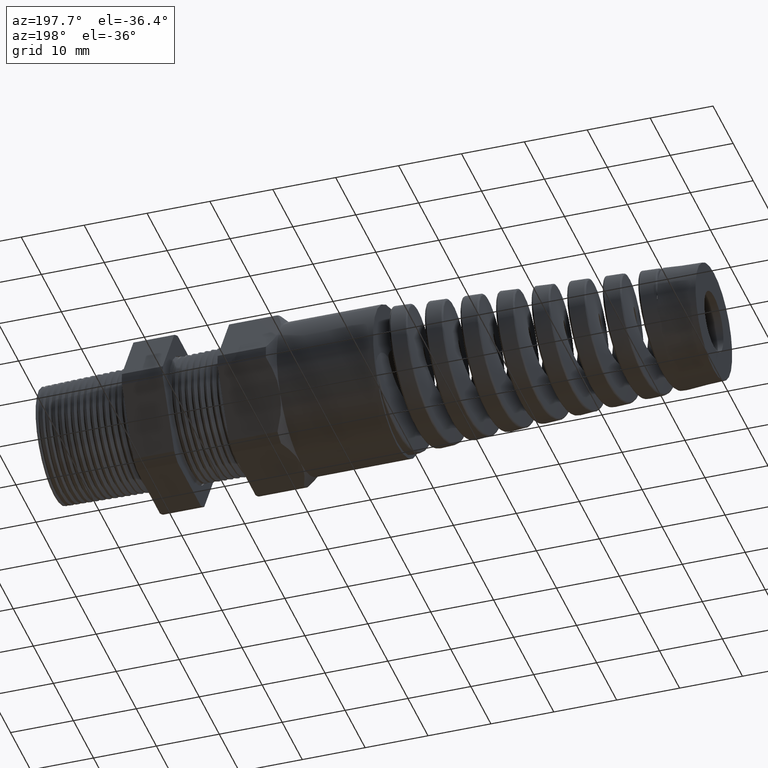
[diagram: clean part render]
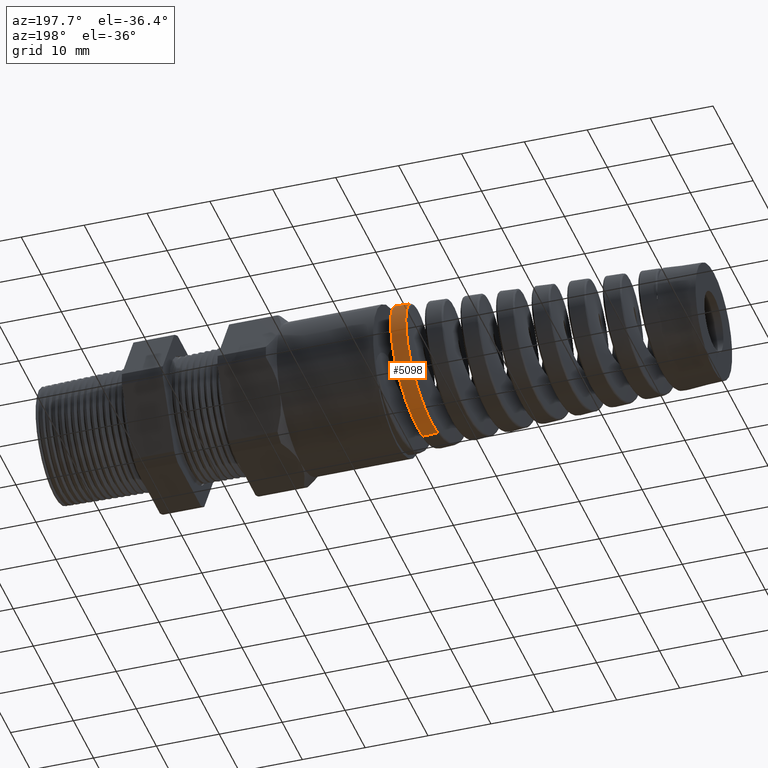
[diagram: same view with one face highlighted and labeled with its STEP entity id]
A machine part, auxiliary view. The second image highlights one B-rep face of the part: STEP entity #5098.
In plain terms, the highlighted conical surface has half-angle 2.5 deg.
Its self-contained STEP definition (entity closure, byte-faithful):
#1 = CARTESIAN_POINT ( 'NONE',  ( -1.990380428492254400, 0.3851992818826104900, -0.2205229742640699400 ) ) ;
#2 = CARTESIAN_POINT ( 'NONE',  ( -1.988105488626959100, 0.3988736581020975200, -0.1949842657371650700 ) ) ;
#3 = CARTESIAN_POINT ( 'NONE',  ( -1.983484189483657500, 0.4212666667880786700, -0.1408270885237718500 ) ) ;
#4 = CARTESIAN_POINT ( 'NONE',  ( -1.981206183569700400, 0.4296351619895035200, -0.1130358461359179700 ) ) ;
#5 = CARTESIAN_POINT ( 'NONE',  ( -1.977784615672798500, 0.4380638259838132700, -0.07049122150020727100 ) ) ;
#6 = CARTESIAN_POINT ( 'NONE',  ( -1.976642830110668400, 0.4401846995125316400, -0.05615653330960770200 ) ) ;
#7 = CARTESIAN_POINT ( 'NONE',  ( -1.974347729285169200, 0.4430197928150045900, -0.02717507640674322500 ) ) ;
#8 = CARTESIAN_POINT ( 'NONE',  ( -1.973189730296131400, 0.4437275874252440400, -0.01247098298602351000 ) ) ;
#9 = CARTESIAN_POINT ( 'NONE',  ( -1.969751515442496900, 0.4436727818959820300, 0.03118966486828905400 ) ) ;
#10 = CARTESIAN_POINT ( 'NONE',  ( -1.967485484421629200, 0.4407997768988506400, 0.05995941959025347100 ) ) ;
#11 = CARTESIAN_POINT ( 'NONE',  ( -1.962917144560784300, 0.4294513615817475700, 0.1168256274964298200 ) ) ;
#12 = CARTESIAN_POINT ( 'NONE',  ( -1.960601231571306800, 0.4208449272189311900, 0.1451012222200138400 ) ) ;
#13 = CARTESIAN_POINT ( 'NONE',  ( -1.956045603608389700, 0.3986230590451902400, 0.1985981488806127000 ) ) ;
#14 = CARTESIAN_POINT ( 'NONE',  ( -1.953782031940012500, 0.3849893712611418600, 0.2241068982771733700 ) ) ;
#15 = CARTESIAN_POINT ( 'NONE',  ( -1.950341039767326600, 0.3606831724984587700, 0.2604693606020369600 ) ) ;
#16 = CARTESIAN_POINT ( 'NONE',  ( -1.949184998114635400, 0.3519141494236782100, 0.2722805707446550600 ) ) ;
#17 = CARTESIAN_POINT ( 'NONE',  ( -1.946899194016766400, 0.3334587828759020300, 0.2947444532765684000 ) ) ;
#18 = CARTESIAN_POINT ( 'NONE',  ( -1.944627360944396900, 0.3140013892886263600, 0.3161880250815081700 ) ) ;
#19 = CARTESIAN_POINT ( 'NONE',  ( -1.942358589030076500, 0.2925758690381687300, 0.3356248094211874400 ) ) ;
#20 = CARTESIAN_POINT ( 'NONE',  ( -1.940079662300445000, 0.2701560840001791500, 0.3540464787947182900 ) ) ;
#21 = CARTESIAN_POINT ( 'NONE',  ( -1.938930187931909200, 0.2583963969801699200, 0.3627843114528157600 ) ) ;
#22 = CARTESIAN_POINT ( 'NONE',  ( -1.935484291144955900, 0.2219382085638152100, 0.3871689830900429400 ) ) ;
#23 = CARTESIAN_POINT ( 'NONE',  ( -1.933221535427944500, 0.1964074546499555400, 0.4008124293051023000 ) ) ;
#24 = CARTESIAN_POINT ( 'NONE',  ( -1.929817558239010200, 0.1563360750932548700, 0.4174806565332261900 ) ) ;
#25 = CARTESIAN_POINT ( 'NONE',  ( -1.928680844805910700, 0.1426809877509492000, 0.4223993720632647200 ) ) ;
#26 = CARTESIAN_POINT ( 'NONE',  ( -1.926391223606057400, 0.1147597095809170800, 0.4309273777993327100 ) ) ;
#27 = CARTESIAN_POINT ( 'NONE',  ( -1.925240307572415600, 0.1005158575662451800, 0.4345197300457496200 ) ) ;
#28 = CARTESIAN_POINT ( 'NONE',  ( -1.921822107427375100, 0.05779918559037178200, 0.4430980944183211500 ) ) ;
#29 = CARTESIAN_POINT ( 'NONE',  ( -1.919565081038269600, 0.02903904114557478300, 0.4460054703723106400 ) ) ;
#30 = CARTESIAN_POINT ( 'NONE',  ( -1.917290418254569800, -5.340451959576618400E-013, 0.4461047842942111900 ) ) ;
#31 = B_SPLINE_CURVE_WITH_KNOTS ( 'NONE', 3,
 ( #30, #29, #28, #27, #26, #25, #24, #23, #22, #21, #20, #19, #18, #17, #16, #15, #14, #13, #12, #11, #10, #9, #8, #7, #6, #5, #4, #3, #2, #1, #72, #71, #70, #69, #68, #67, #66, #65, #64, #63, #62, #61, #60, #59, #58, #57, #56 ),
 .UNSPECIFIED., .F., .F.,
 ( 4, 2, 2, 2, 2, 2, 1, 2, 2, 2, 2, 2, 2, 2, 2, 2, 2, 2, 2, 2, 2, 2, 2, 4 ),
 ( 0.01311946189946120200, 0.01535966072012326200, 0.01647976013045429300, 0.01759985954078532500, 0.01984005836144738000, 0.02096015777177841200, 0.02208025718210944500, 0.02320035659244046700, 0.02432045600277149600, 0.02656065482343354700, 0.02880085364409559800, 0.03104105246475764900, 0.03216115187508868100, 0.03328125128541970000, 0.03552145010608175800, 0.03776164892674381500, 0.03888174833707484100, 0.04000184774740586600, 0.04224204656806791700, 0.04336214597839895000, 0.04448224538872996800, 0.04672244420939201900, 0.04784254361972305200, 0.04896264303005407000 ),
 .UNSPECIFIED. ) ;
#32 = CARTESIAN_POINT ( 'NONE',  ( -2.027124883345048800, 5.290029633860172300E-017, -0.4413093079845087900 ) ) ;
#52 = DIRECTION ( 'NONE',  ( 0.9990482215818576900, 0.0000000000000000000, -0.04361938736533634700 ) ) ;
#53 = VECTOR ( 'NONE', #52, 39.37007874015748100 ) ;
#54 = CARTESIAN_POINT ( 'NONE',  ( -1.369999999999999900, 0.0000000000000000000, -0.4699999999999998600 ) ) ;
#55 = LINE ( 'NONE', #54, #53 ) ;
#56 = CARTESIAN_POINT ( 'NONE',  ( -2.027124883345048800, 5.290029633860172300E-017, -0.4413093079845087900 ) ) ;
#57 = CARTESIAN_POINT ( 'NONE',  ( -2.025980390705448100, 0.01445352402370742500, -0.4413592776123056400 ) ) ;
#58 = CARTESIAN_POINT ( 'NONE',  ( -2.024836018327609700, 0.02890734788627480300, -0.4407009007046771600 ) ) ;
#59 = CARTESIAN_POINT ( 'NONE',  ( -2.022536008721374800, 0.05781468726966158800, -0.4379486771475518100 ) ) ;
#60 = CARTESIAN_POINT ( 'NONE',  ( -2.021374189848131700, 0.07234468711465581700, -0.4358383387616276400 ) ) ;
#61 = CARTESIAN_POINT ( 'NONE',  ( -2.017904044353229200, 0.1153300426528212800, -0.4273889566621702500 ) ) ;
#62 = CARTESIAN_POINT ( 'NONE',  ( -2.015626278950532600, 0.1430293505636255100, -0.4190200906787931400 ) ) ;
#63 = CARTESIAN_POINT ( 'NONE',  ( -2.012192756345841700, 0.1831753225435222800, -0.4024749017330404000 ) ) ;
#64 = CARTESIAN_POINT ( 'NONE',  ( -2.011045279632914800, 0.1963217902401251100, -0.3962897442376933600 ) ) ;
#65 = CARTESIAN_POINT ( 'NONE',  ( -2.008732421079983100, 0.2221285089337779700, -0.3825389031753199100 ) ) ;
#66 = CARTESIAN_POINT ( 'NONE',  ( -2.007574777292328200, 0.2346983563751307600, -0.3750135710181497500 ) ) ;
#67 = CARTESIAN_POINT ( 'NONE',  ( -2.004131787341497400, 0.2708994414113827800, -0.3508509518785837300 ) ) ;
#68 = CARTESIAN_POINT ( 'NONE',  ( -2.001858814863501900, 0.2932589667025970500, -0.3325259890630114500 ) ) ;
#69 = CARTESIAN_POINT ( 'NONE',  ( -1.998414489591069600, 0.3241167591016209700, -0.3016978303530970500 ) ) ;
#70 = CARTESIAN_POINT ( 'NONE',  ( -1.997253988209950500, 0.3340003324370415800, -0.2907970493788478200 ) ) ;
#71 = CARTESIAN_POINT ( 'NONE',  ( -1.994951592443442000, 0.3524857528861117300, -0.2682572223698708200 ) ) ;
#72 = CARTESIAN_POINT ( 'NONE',  ( -1.993807451724028300, 0.3611141228813427000, -0.2566040385995906900 ) ) ;
#603 = DIRECTION ( 'NONE',  ( 0.0000000000000000000, 0.0000000000000000000, -1.000000000000000000 ) ) ;
#604 = DIRECTION ( 'NONE',  ( 1.000000000000000000, 0.0000000000000000000, 0.0000000000000000000 ) ) ;
#605 = CARTESIAN_POINT ( 'NONE',  ( -1.369999999999999900, 0.0000000000000000000, 0.0000000000000000000 ) ) ;
#606 = AXIS2_PLACEMENT_3D ( 'NONE', #605, #604, #603 ) ;
#607 = CONICAL_SURFACE ( 'NONE', #606, 0.4699999999999998600, 0.04363323129985858400 ) ;
#608 = FACE_OUTER_BOUND ( 'NONE', #5099, .T. ) ;
#640 = CARTESIAN_POINT ( 'NONE',  ( -2.020149781319668500, 0.1141732701862759900, 0.4275709747978039300 ) ) ;
#641 = CARTESIAN_POINT ( 'NONE',  ( -2.022410933398715900, 0.1415599476567471800, 0.4191927888814650500 ) ) ;
#642 = CARTESIAN_POINT ( 'NONE',  ( -2.025835598275926000, 0.1813699635631335100, 0.4026351708807483500 ) ) ;
#643 = CARTESIAN_POINT ( 'NONE',  ( -2.026987243783393100, 0.1944787749603729400, 0.3964178219205779500 ) ) ;
#644 = CARTESIAN_POINT ( 'NONE',  ( -2.029290937772547700, 0.2200111918965992600, 0.3827210377449866100 ) ) ;
#645 = CARTESIAN_POINT ( 'NONE',  ( -2.030434646384562400, 0.2323447225812886600, 0.3752971511767938500 ) ) ;
#646 = CARTESIAN_POINT ( 'NONE',  ( -2.033855689269606700, 0.2680850634702350900, 0.3513510699131131600 ) ) ;
#647 = CARTESIAN_POINT ( 'NONE',  ( -2.036121715226274300, 0.2902435247454647200, 0.3331700921086581700 ) ) ;
#648 = CARTESIAN_POINT ( 'NONE',  ( -2.039571593370925300, 0.3209093433631994800, 0.3024910114628756000 ) ) ;
#649 = CARTESIAN_POINT ( 'NONE',  ( -2.040728513280990300, 0.3306785267067871600, 0.2916998349044537300 ) ) ;
#650 = CARTESIAN_POINT ( 'NONE',  ( -2.043019667870987100, 0.3489247912116532600, 0.2694446302653693000 ) ) ;
#651 = CARTESIAN_POINT ( 'NONE',  ( -2.044160254025556800, 0.3574598822794840000, 0.2579252511556512400 ) ) ;
#652 = CARTESIAN_POINT ( 'NONE',  ( -2.046440819210265400, 0.3733704926730424500, 0.2341148267119878800 ) ) ;
#653 = CARTESIAN_POINT ( 'NONE',  ( -2.047580409352513200, 0.3807460387585848100, 0.2218237618199664600 ) ) ;
#654 = CARTESIAN_POINT ( 'NONE',  ( -2.049870150192482800, 0.3943207029559630000, 0.1964598222571191900 ) ) ;
#655 = CARTESIAN_POINT ( 'NONE',  ( -2.051026479654245000, 0.4005479584802118000, 0.1833154396752622900 ) ) ;
#656 = CARTESIAN_POINT ( 'NONE',  ( -2.054482767836260500, 0.4171642456044885600, 0.1432209423032478100 ) ) ;
#657 = CARTESIAN_POINT ( 'NONE',  ( -2.056757668976237200, 0.4254758276764311100, 0.1157853452616925700 ) ) ;
#658 = CARTESIAN_POINT ( 'NONE',  ( -2.060188022917716700, 0.4339005782797091800, 0.07360520501063502800 ) ) ;
#659 = CARTESIAN_POINT ( 'NONE',  ( -2.061333849674579900, 0.4360302918849696100, 0.05937277023544893600 ) ) ;
#660 = CARTESIAN_POINT ( 'NONE',  ( -2.063642168720390300, 0.4388910805389335500, 0.03055353717528864000 ) ) ;
#661 = CARTESIAN_POINT ( 'NONE',  ( -2.064798225425620500, 0.4396065434014742600, 0.01604920367881307300 ) ) ;
#662 = CARTESIAN_POINT ( 'NONE',  ( -2.068237194376496600, 0.4396205713564113000, -0.02707781876183771100 ) ) ;
#663 = CARTESIAN_POINT ( 'NONE',  ( -2.070512707237918400, 0.4368359163257726800, -0.05558119245778074500 ) ) ;
#664 = CARTESIAN_POINT ( 'NONE',  ( -2.073962744010769700, 0.4284447221466332600, -0.09795719196602437100 ) ) ;
#665 = CARTESIAN_POINT ( 'NONE',  ( -2.075124802580383200, 0.4249139195982844000, -0.1120954735809582500 ) ) ;
#666 = CARTESIAN_POINT ( 'NONE',  ( -2.077430749735812700, 0.4165339105148869200, -0.1397437150553467700 ) ) ;
#667 = CARTESIAN_POINT ( 'NONE',  ( -2.078576129969894800, 0.4116909016823884200, -0.1532713207719943200 ) ) ;
#668 = CARTESIAN_POINT ( 'NONE',  ( -2.082008059790339900, 0.3952502056217737600, -0.1929845014183444200 ) ) ;
#669 = CARTESIAN_POINT ( 'NONE',  ( -2.084290689707768900, 0.3817594097239328500, -0.2183088612941291300 ) ) ;
#670 = CARTESIAN_POINT ( 'NONE',  ( -2.088931579831333700, 0.3495240225355282200, -0.2665598898393333200 ) ) ;
#671 = CARTESIAN_POINT ( 'NONE',  ( -2.091220801470036000, 0.3312302225006028000, -0.2887883755061830300 ) ) ;
#672 = CARTESIAN_POINT ( 'NONE',  ( -2.094656010390614200, 0.3008377721049014800, -0.3191582187109702800 ) ) ;
#673 = CARTESIAN_POINT ( 'NONE',  ( -2.095802673669982400, 0.2902019953844706100, -0.3287963842791795700 ) ) ;
#674 = CARTESIAN_POINT ( 'NONE',  ( -2.098110738927741800, 0.2678999678600308400, -0.3470814582228057300 ) ) ;
#675 = CARTESIAN_POINT ( 'NONE',  ( -2.099277205603416800, 0.2561777943281363700, -0.3557587704317180000 ) ) ;
#676 = CARTESIAN_POINT ( 'NONE',  ( -2.102742319782125300, 0.2201703175670582900, -0.3797470543830435700 ) ) ;
#677 = CARTESIAN_POINT ( 'NONE',  ( -2.105023572680700300, 0.1948826552010105000, -0.3932037660446447400 ) ) ;
#678 = CARTESIAN_POINT ( 'NONE',  ( -2.109622395355137000, 0.1417795291797471800, -0.4151038449822454000 ) ) ;
#679 = CARTESIAN_POINT ( 'NONE',  ( -2.111958164494158700, 0.1137371322777700200, -0.4235396120412267000 ) ) ;
#680 = CARTESIAN_POINT ( 'NONE',  ( -2.116560947673861800, 0.05741491439928964000, -0.4345683171027532300 ) ) ;
#681 = CARTESIAN_POINT ( 'NONE',  ( -2.118846388396122800, 0.02889088899612966800, -0.4373046605890646400 ) ) ;
#682 = CARTESIAN_POINT ( 'NONE',  ( -2.121162570605299000, -1.104280187548484100E-012, -0.4372035338897904400 ) ) ;
#683 = CARTESIAN_POINT ( 'NONE',  ( -2.010993664111188300, -6.393481900598157300E-015, 0.4420136122265230200 ) ) ;
#684 = B_SPLINE_CURVE_WITH_KNOTS ( 'NONE', 3,
 ( #682, #681, #680, #679, #678, #677, #676, #675, #674, #673, #672, #671, #670, #669, #668, #667, #666, #665, #664, #663, #662, #661, #660, #659, #658, #657, #656, #655, #654, #653, #652, #651, #650, #649, #648, #647, #646, #645, #644, #643, #642, #641, #640, #720, #719, #718, #717, #716 ),
 .UNSPECIFIED., .F., .F.,
 ( 4, 2, 2, 2, 2, 2, 2, 2, 2, 2, 2, 2, 2, 2, 2, 2, 2, 2, 2, 2, 2, 2, 2, 4 ),
 ( 0.4420631664881907700, 0.4442793565869567200, 0.4464955466857227200, 0.4487117367844886700, 0.4498198318338716400, 0.4509279268832546200, 0.4531441169820205600, 0.4553603070807865600, 0.4564684021301695400, 0.4575764971795525100, 0.4597926872783184600, 0.4609007823277014900, 0.4620088773770844600, 0.4642250674758504100, 0.4653331625252333800, 0.4664412575746163500, 0.4675493526239993300, 0.4686574476733823500, 0.4708736377721483000, 0.4719817328215312700, 0.4730898278709142500, 0.4753060179696801900, 0.4764141130190632200, 0.4775222080684462000 ),
 .UNSPECIFIED. ) ;
#685 = CARTESIAN_POINT ( 'NONE',  ( -2.121162570605299000, -1.104280187548484100E-012, -0.4372035338897904400 ) ) ;
#711 = CARTESIAN_POINT ( 'NONE',  ( -1.917290418254569800, -5.340451959576618400E-013, 0.4461047842942111900 ) ) ;
#712 = DIRECTION ( 'NONE',  ( 0.9990482215818576900, 5.341834311772765600E-018, 0.04361938736533634700 ) ) ;
#713 = VECTOR ( 'NONE', #712, 39.37007874015748100 ) ;
#714 = CARTESIAN_POINT ( 'NONE',  ( -1.369999999999999900, 5.755839955992558400E-017, 0.4699999999999998600 ) ) ;
#715 = LINE ( 'NONE', #714, #713 ) ;
#716 = CARTESIAN_POINT ( 'NONE',  ( -2.010993664111188300, -6.393481900598157300E-015, 0.4420136122265230200 ) ) ;
#717 = CARTESIAN_POINT ( 'NONE',  ( -2.012130160670194500, 0.01432653541243735500, 0.4419639917151447200 ) ) ;
#718 = CARTESIAN_POINT ( 'NONE',  ( -2.013269131401862900, 0.02867412272458208500, 0.4412194360840681600 ) ) ;
#719 = CARTESIAN_POINT ( 'NONE',  ( -2.015562698614993900, 0.05741160125632027000, 0.4383060667902798900 ) ) ;
#720 = CARTESIAN_POINT ( 'NONE',  ( -2.016719056624416000, 0.07182169280760915300, 0.4361240370032866100 ) ) ;
#5025 = ORIENTED_EDGE ( 'NONE', *, *, #5026, .T. ) ;
#5026 = EDGE_CURVE ( 'NONE', #5106, #5027, #31, .T. ) ;
#5027 = VERTEX_POINT ( 'NONE', #32 ) ;
#5028 = ORIENTED_EDGE ( 'NONE', *, *, #5029, .F. ) ;
#5029 = EDGE_CURVE ( 'NONE', #5102, #5027, #55, .T. ) ;
#5098 = ADVANCED_FACE ( 'NONE', ( #608 ), #607, .T. ) ;
#5099 = EDGE_LOOP ( 'NONE', ( #5100, #5104, #5025, #5028 ) ) ;
#5100 = ORIENTED_EDGE ( 'NONE', *, *, #5101, .T. ) ;
#5101 = EDGE_CURVE ( 'NONE', #5102, #5103, #684, .T. ) ;
#5102 = VERTEX_POINT ( 'NONE', #685 ) ;
#5103 = VERTEX_POINT ( 'NONE', #683 ) ;
#5104 = ORIENTED_EDGE ( 'NONE', *, *, #5105, .T. ) ;
#5105 = EDGE_CURVE ( 'NONE', #5103, #5106, #715, .T. ) ;
#5106 = VERTEX_POINT ( 'NONE', #711 ) ;